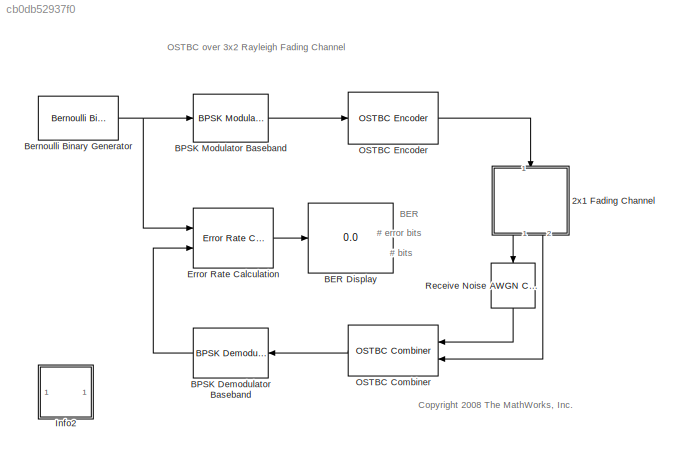
MODEL slx_cb0db52937f0
KIND model
CONFIG PreLoadFcn = EbNo = 5;\nmaxNumErrs = 100;\nmaxNumBits = 1e6;
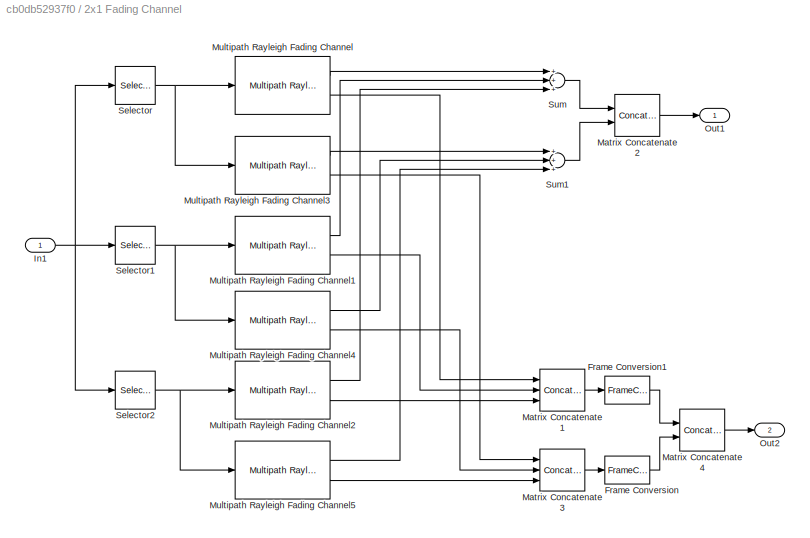
BLOCK [SubSystem] 2x1 Fading Channel
  Ports = [1, 2]
  RequestExecContextInheritance = off
BLOCK [FrameConversion] 2x1 Fading Channel/Frame Conversion
  OutFrame = Sample-based
  Ports = [1, 1]
BLOCK [FrameConversion] 2x1 Fading Channel/Frame Conversion1
  OutFrame = Sample-based
  Ports = [1, 1]
BLOCK [Inport] 2x1 Fading Channel/In1
  IconDisplay = Port number
BLOCK [Concatenate] 2x1 Fading Channel/Matrix Concatenate1
  ConcatenateDimension = 2
  Mode = Multidimensional array
  NumInputs = 3
  Ports = [3, 1]
BLOCK [Concatenate] 2x1 Fading Channel/Matrix Concatenate2
  ConcatenateDimension = 2
  Mode = Multidimensional array
  Ports = [2, 1]
BLOCK [Concatenate] 2x1 Fading Channel/Matrix Concatenate3
  ConcatenateDimension = 2
  Mode = Multidimensional array
  NumInputs = 3
  Ports = [3, 1]
BLOCK [Concatenate] 2x1 Fading Channel/Matrix Concatenate4
  ConcatenateDimension = 3
  Mode = Multidimensional array
  Ports = [2, 1]
BLOCK [Reference] 2x1 Fading Channel/Multipath Rayleigh Fading Channel  REF=commchan3/Multipath Rayleigh
Fading Channel
  Ports = [1, 2]
  SourceBlock = commchan3/Multipath Rayleigh\nFading Channel
  SourceType = Multipath Rayleigh Fading Channel
  avgPathGaindB = 0
  centerFreqGaussian1 = 0.0
  centerFreqGaussian2 = 0.0
  coeffBell = 9
  coeffRounded = [1 -1.72 0.785]
  dopplerSpectrum = doppler.jakes
  enableProbe = 0
  freqMinMaxAJakes = [0 1]
  freqMinMaxRJakes = [0 1]
  gainGaussian1 = 0.5
  gainGaussian2 = 0.5
  maxDopplerShift = 3
  normalizePathGains = on
  openVisAtStart = off
  outDelay = off
  outPathGains = on
  pathDelays = 0
  seed = 12345
  sigmaGaussian = 1/sqrt(2)
  sigmaGaussian1 = 1/sqrt(2)
  sigmaGaussian2 = 1/sqrt(2)
  spectrumType = Jakes
BLOCK [Reference] 2x1 Fading Channel/Multipath Rayleigh Fading Channel1  REF=commchan3/Multipath Rayleigh
Fading Channel
  Ports = [1, 2]
  SourceBlock = commchan3/Multipath Rayleigh\nFading Channel
  SourceType = Multipath Rayleigh Fading Channel
  avgPathGaindB = 0
  centerFreqGaussian1 = 0.0
  centerFreqGaussian2 = 0.0
  coeffBell = 9
  coeffRounded = [1 -1.72 0.785]
  dopplerSpectrum = doppler.jakes
  enableProbe = 0
  freqMinMaxAJakes = [0 1]
  freqMinMaxRJakes = [0 1]
  gainGaussian1 = 0.5
  gainGaussian2 = 0.5
  maxDopplerShift = 3
  normalizePathGains = on
  openVisAtStart = off
  outDelay = off
  outPathGains = on
  pathDelays = 0
  seed = 24680
  sigmaGaussian = 1/sqrt(2)
  sigmaGaussian1 = 1/sqrt(2)
  sigmaGaussian2 = 1/sqrt(2)
  spectrumType = Jakes
BLOCK [Reference] 2x1 Fading Channel/Multipath Rayleigh Fading Channel2  REF=commchan3/Multipath Rayleigh
Fading Channel
  Ports = [1, 2]
  SourceBlock = commchan3/Multipath Rayleigh\nFading Channel
  SourceType = Multipath Rayleigh Fading Channel
  avgPathGaindB = 0
  centerFreqGaussian1 = 0.0
  centerFreqGaussian2 = 0.0
  coeffBell = 9
  coeffRounded = [1 -1.72 0.785]
  dopplerSpectrum = doppler.jakes
  enableProbe = 0
  freqMinMaxAJakes = [0 1]
  freqMinMaxRJakes = [0 1]
  gainGaussian1 = 0.5
  gainGaussian2 = 0.5
  maxDopplerShift = 3
  normalizePathGains = on
  openVisAtStart = off
  outDelay = off
  outPathGains = on
  pathDelays = 0
  seed = 98765
  sigmaGaussian = 1/sqrt(2)
  sigmaGaussian1 = 1/sqrt(2)
  sigmaGaussian2 = 1/sqrt(2)
  spectrumType = Jakes
BLOCK [Reference] 2x1 Fading Channel/Multipath Rayleigh Fading Channel3  REF=commchan3/Multipath Rayleigh
Fading Channel
  Ports = [1, 2]
  SourceBlock = commchan3/Multipath Rayleigh\nFading Channel
  SourceType = Multipath Rayleigh Fading Channel
  avgPathGaindB = 0
  centerFreqGaussian1 = 0.0
  centerFreqGaussian2 = 0.0
  coeffBell = 9
  coeffRounded = [1 -1.72 0.785]
  dopplerSpectrum = doppler.jakes
  enableProbe = 0
  freqMinMaxAJakes = [0 1]
  freqMinMaxRJakes = [0 1]
  gainGaussian1 = 0.5
  gainGaussian2 = 0.5
  maxDopplerShift = 3
  normalizePathGains = on
  openVisAtStart = off
  outDelay = off
  outPathGains = on
  pathDelays = 0
  seed = 67890
  sigmaGaussian = 1/sqrt(2)
  sigmaGaussian1 = 1/sqrt(2)
  sigmaGaussian2 = 1/sqrt(2)
  spectrumType = Jakes
BLOCK [Reference] 2x1 Fading Channel/Multipath Rayleigh Fading Channel4  REF=commchan3/Multipath Rayleigh
Fading Channel
  Ports = [1, 2]
  SourceBlock = commchan3/Multipath Rayleigh\nFading Channel
  SourceType = Multipath Rayleigh Fading Channel
  avgPathGaindB = 0
  centerFreqGaussian1 = 0.0
  centerFreqGaussian2 = 0.0
  coeffBell = 9
  coeffRounded = [1 -1.72 0.785]
  dopplerSpectrum = doppler.jakes
  enableProbe = 0
  freqMinMaxAJakes = [0 1]
  freqMinMaxRJakes = [0 1]
  gainGaussian1 = 0.5
  gainGaussian2 = 0.5
  maxDopplerShift = 3
  normalizePathGains = on
  openVisAtStart = off
  outDelay = off
  outPathGains = on
  pathDelays = 0
  seed = 54321
  sigmaGaussian = 1/sqrt(2)
  sigmaGaussian1 = 1/sqrt(2)
  sigmaGaussian2 = 1/sqrt(2)
  spectrumType = Jakes
BLOCK [Reference] 2x1 Fading Channel/Multipath Rayleigh Fading Channel5  REF=commchan3/Multipath Rayleigh
Fading Channel
  Ports = [1, 2]
  SourceBlock = commchan3/Multipath Rayleigh\nFading Channel
  SourceType = Multipath Rayleigh Fading Channel
  avgPathGaindB = 0
  centerFreqGaussian1 = 0.0
  centerFreqGaussian2 = 0.0
  coeffBell = 9
  coeffRounded = [1 -1.72 0.785]
  dopplerSpectrum = doppler.jakes
  enableProbe = 0
  freqMinMaxAJakes = [0 1]
  freqMinMaxRJakes = [0 1]
  gainGaussian1 = 0.5
  gainGaussian2 = 0.5
  maxDopplerShift = 3
  normalizePathGains = on
  openVisAtStart = off
  outDelay = off
  outPathGains = on
  pathDelays = 0
  seed = 13579
  sigmaGaussian = 1/sqrt(2)
  sigmaGaussian1 = 1/sqrt(2)
  sigmaGaussian2 = 1/sqrt(2)
  spectrumType = Jakes
BLOCK [Outport] 2x1 Fading Channel/Out1
  IconDisplay = Port number
BLOCK [Outport] 2x1 Fading Channel/Out2
  IconDisplay = Port number
  Port = 2
BLOCK [Selector] 2x1 Fading Channel/Selector
  IndexOptions = Select all,Index vector (dialog)
  Indices = -1,1
  InputPortWidth = 3
  NumberOfDimensions = 2
  Ports = [1, 1]
BLOCK [Selector] 2x1 Fading Channel/Selector1
  IndexOptions = Select all,Index vector (dialog)
  Indices = -1,2
  InputPortWidth = 3
  NumberOfDimensions = 2
  Ports = [1, 1]
BLOCK [Selector] 2x1 Fading Channel/Selector2
  IndexOptions = Select all,Index vector (dialog)
  Indices = -1,3
  InputPortWidth = 3
  NumberOfDimensions = 2
  Ports = [1, 1]
BLOCK [Sum] 2x1 Fading Channel/Sum
  InputSameDT = off
  Inputs = +++
  OutDataTypeStr = Inherit: Inherit via internal rule
  Ports = [3, 1]
  SaturateOnIntegerOverflow = off
BLOCK [Sum] 2x1 Fading Channel/Sum1
  InputSameDT = off
  Inputs = +++
  OutDataTypeStr = Inherit: Inherit via internal rule
  Ports = [3, 1]
  SaturateOnIntegerOverflow = off
BLOCK [Display] BER Display
  Decimation = 1
  Ports = [1]
BLOCK [Reference] BPSK Demodulator Baseband  REF=commdigbbndpm3/BPSK
Demodulator
Baseband
  DecType = Hard decision
  Ph = 0
  Ports = [1, 1]
  SourceBlock = commdigbbndpm3/BPSK\nDemodulator\nBaseband
  SourceType = BPSK Demodulator Baseband
  VarSource = Dialog
  Variance = 1
  derotateFactorDTMode = Same word length as input
  derotateFactorWordLen = 16
  outDtype = boolean
BLOCK [Reference] BPSK Modulator Baseband  REF=commdigbbndpm3/BPSK
Modulator
Baseband
  Ph = 0
  Ports = [1, 1]
  SourceBlock = commdigbbndpm3/BPSK\nModulator\nBaseband
  SourceType = BPSK Modulator Baseband
  outDtype = double
  outFracLen = 15
  outFracLenMode = Best precision
  outUDDataType = sfix(16)
  outWordLen = 16
BLOCK [Reference] Bernoulli Binary Generator  REF=commrandsrc2/Bernoulli Binary
Generator
  P = 0.5
  Ports = [0, 1]
  SourceBlock = commrandsrc2/Bernoulli Binary\nGenerator
  SourceType = Bernoulli Binary Generator
  Ts = 1e-3
  frameBased = on
  orient = off
  outDataType = boolean
  sampPerFrame = 3
  seed = 61
BLOCK [Reference] Error Rate Calculation  REF=commsink2/Error Rate
Calculation
  N = 0
  PMode = Port
  Ports = [2, 1]
  RsMode2 = off
  SourceBlock = commsink2/Error Rate\nCalculation
  SourceType = Error Rate Calculation
  WsName = ErrorVec
  cp_mode = Entire frame
  maxBits = maxNumBits
  numErr = maxNumErrs
  st_delay = 0
  stop = on
  subframe = []
BLOCK [SubSystem] Info2
  AncestorBlock = commblksprivate/Info
  OpenFcn = helpview([docroot '/toolbox/comm/comm.map'], 'doc_ostbc32')
  Ports = []
  RequestExecContextInheritance = off
BLOCK [Reference] OSTBC Combiner  REF=commmimo/OSTBC Combiner
  Ports = [2, 1]
  SourceBlock = commmimo/OSTBC Combiner
  SourceType = OSTBC Combiner
  crossProductDTMode = Inherit via internal rule
  crossProductFracLen = 16
  crossProductWordLen = 32
  crossSumDTMode = Inherit via internal rule
  crossSumFracLen = 16
  crossSumWordLen = 32
  divisionDTMode = Same as accumulator
  divisionFracLen = 16
  divisionWordLen = 32
  egyProductDTMode = Inherit via internal rule
  egyProductFracLen = 16
  egyProductWordLen = 32
  egySumDTMode = Inherit via internal rule
  egySumFracLen = 16
  egySumWordLen = 32
  numRx = 2
  numTx = 3
  overflowMode = Wrap
  rate = 3/4
  roundingMode = Floor
BLOCK [Reference] OSTBC Encoder  REF=commmimo/OSTBC Encoder
  Ports = [1, 1]
  SourceBlock = commmimo/OSTBC Encoder
  SourceType = OSTBC Encoder
  numTx = 3
  overflowMode = Wrap
  rate = 3/4
BLOCK [Reference] Receive Noise  REF=commchan3/AWGN
Channel
  EbNodB = EbNo - 10*log10(3)
  EsNodB = 5
  InputProcessing = Columns as channels (frame based)
  Ports = [1, 1]
  Ps = 2.25
  SNRdB = EbNo - 10*log10(3)
  SourceBlock = commchan3/AWGN\nChannel
  SourceType = AWGN Channel
  Tsym = 7.5e-4
  UserDataPersistent = on
  bitsPerSym = 1
  noiseMode = Signal to noise ratio  (Eb/No)
  seed = 188
  variance = 1
ANNOTATION (root): # bits
ANNOTATION (root): # error bits
ANNOTATION (root): BER
ANNOTATION (root): <copyright redacted>
ANNOTATION (root): OSTBC over 3x2 Rayleigh Fading Channel
LINE 2x1 Fading Channel/Frame Conversion1:1 -> 2x1 Fading Channel/Matrix Concatenate4:1
LINE 2x1 Fading Channel/Frame Conversion:1 -> 2x1 Fading Channel/Matrix Concatenate4:2
NET 2x1 Fading Channel/In1:1 -> 2x1 Fading Channel/Selector1:1, 2x1 Fading Channel/Selector2:1, 2x1 Fading Channel/Selector:1
LINE 2x1 Fading Channel/Matrix Concatenate1:1 -> 2x1 Fading Channel/Frame Conversion1:1
LINE 2x1 Fading Channel/Matrix Concatenate2:1 -> 2x1 Fading Channel/Out1:1
LINE 2x1 Fading Channel/Matrix Concatenate3:1 -> 2x1 Fading Channel/Frame Conversion:1
LINE 2x1 Fading Channel/Matrix Concatenate4:1 -> 2x1 Fading Channel/Out2:1
LINE 2x1 Fading Channel/Multipath Rayleigh Fading Channel1:1 -> 2x1 Fading Channel/Sum:2
LINE 2x1 Fading Channel/Multipath Rayleigh Fading Channel1:2 -> 2x1 Fading Channel/Matrix Concatenate1:2
LINE 2x1 Fading Channel/Multipath Rayleigh Fading Channel2:1 -> 2x1 Fading Channel/Sum:3
LINE 2x1 Fading Channel/Multipath Rayleigh Fading Channel2:2 -> 2x1 Fading Channel/Matrix Concatenate1:3
LINE 2x1 Fading Channel/Multipath Rayleigh Fading Channel3:1 -> 2x1 Fading Channel/Sum1:1
LINE 2x1 Fading Channel/Multipath Rayleigh Fading Channel3:2 -> 2x1 Fading Channel/Matrix Concatenate3:1
LINE 2x1 Fading Channel/Multipath Rayleigh Fading Channel4:1 -> 2x1 Fading Channel/Sum1:2
LINE 2x1 Fading Channel/Multipath Rayleigh Fading Channel4:2 -> 2x1 Fading Channel/Matrix Concatenate3:2
LINE 2x1 Fading Channel/Multipath Rayleigh Fading Channel5:1 -> 2x1 Fading Channel/Sum1:3
LINE 2x1 Fading Channel/Multipath Rayleigh Fading Channel5:2 -> 2x1 Fading Channel/Matrix Concatenate3:3
LINE 2x1 Fading Channel/Multipath Rayleigh Fading Channel:1 -> 2x1 Fading Channel/Sum:1
LINE 2x1 Fading Channel/Multipath Rayleigh Fading Channel:2 -> 2x1 Fading Channel/Matrix Concatenate1:1
NET 2x1 Fading Channel/Selector1:1 -> 2x1 Fading Channel/Multipath Rayleigh Fading Channel1:1, 2x1 Fading Channel/Multipath Rayleigh Fading Channel4:1
NET 2x1 Fading Channel/Selector2:1 -> 2x1 Fading Channel/Multipath Rayleigh Fading Channel2:1, 2x1 Fading Channel/Multipath Rayleigh Fading Channel5:1
NET 2x1 Fading Channel/Selector:1 -> 2x1 Fading Channel/Multipath Rayleigh Fading Channel3:1, 2x1 Fading Channel/Multipath Rayleigh Fading Channel:1
LINE 2x1 Fading Channel/Sum1:1 -> 2x1 Fading Channel/Matrix Concatenate2:2
LINE 2x1 Fading Channel/Sum:1 -> 2x1 Fading Channel/Matrix Concatenate2:1
LINE 2x1 Fading Channel:1 -> Receive Noise:1
LINE 2x1 Fading Channel:2 -> OSTBC Combiner:2
LINE BPSK Demodulator Baseband:1 -> Error Rate Calculation:2
LINE BPSK Modulator Baseband:1 -> OSTBC Encoder:1
NET Bernoulli Binary Generator:1 -> BPSK Modulator Baseband:1, Error Rate Calculation:1
LINE Error Rate Calculation:1 -> BER Display:1
LINE OSTBC Combiner:1 -> BPSK Demodulator Baseband:1
LINE OSTBC Encoder:1 -> 2x1 Fading Channel:1
LINE Receive Noise:1 -> OSTBC Combiner:1
note: NET lines group one-source signal fan-out (src -> all destinations, sorted); 1:1 wires keep LINE
